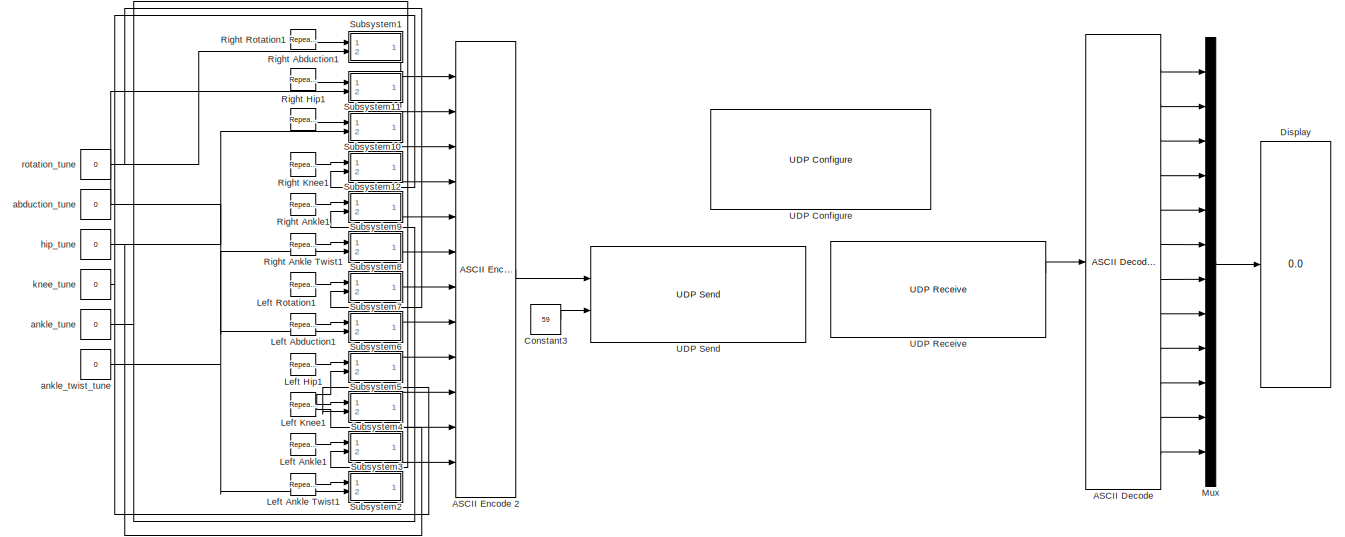
[diagram: root canvas - part 1/2, most of the canvas]
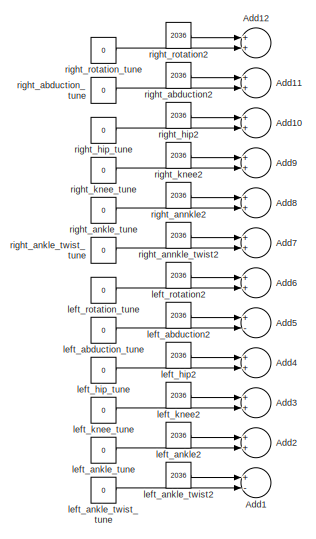
[diagram: root canvas - part 2/2, left side, full height]
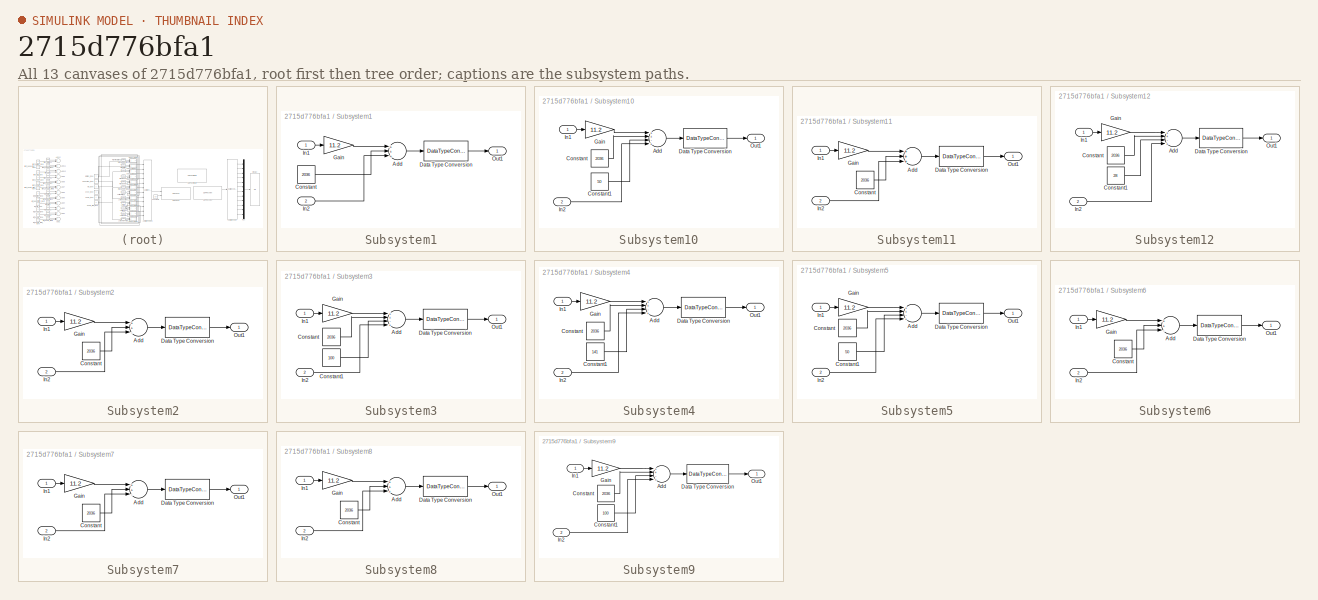
[diagram: thumbnail index - all 13 canvases of the model, root first then tree order]
MODEL slx_2715d776bfa1
KIND model
CONFIG AbsTol = auto
CONFIG EnableMultiTasking = on
CONFIG FixedStep = 0.001
CONFIG MaxStep = auto
CONFIG MinStep = auto
CONFIG RelTol = 1e-3
CONFIG SampleTimeConstraint = Unconstrained
CONFIG Solver = FixedStepAuto
CONFIG SolverName = FixedStepAuto
CONFIG StartTime = 0.0
CONFIG StopTime = inf
BLOCK [Reference] ASCII Decode   REF=xpcseriallib/ASCII Decode 
  Ports = [1, 12]
  SourceBlock = xpcseriallib/ASCII Decode
  SourceProductBaseCode = XP
  SourceProductName = Simulink Real-Time
  SourceType = ASCII Decode
BLOCK [Reference] ASCII Encode 2  REF=xpcseriallib/ASCII Encode 
  Ports = [12, 1]
  SourceBlock = xpcseriallib/ASCII Encode
  SourceProductBaseCode = XP
  SourceProductName = Simulink Real-Time
  SourceType = ASCII Encode
BLOCK [Sum] Add1
  Commented = on
  InputSameDT = off
  Inputs = +-
  OutDataTypeStr = uint32
  Ports = [2, 1]
  SaturateOnIntegerOverflow = off
BLOCK [Sum] Add10
  Commented = on
  InputSameDT = off
  OutDataTypeStr = uint32
  Ports = [2, 1]
  SaturateOnIntegerOverflow = off
BLOCK [Sum] Add11
  Commented = on
  InputSameDT = off
  OutDataTypeStr = uint32
  Ports = [2, 1]
  SaturateOnIntegerOverflow = off
BLOCK [Sum] Add12
  Commented = on
  InputSameDT = off
  OutDataTypeStr = uint32
  Ports = [2, 1]
  SaturateOnIntegerOverflow = off
BLOCK [Sum] Add2
  Commented = on
  InputSameDT = off
  OutDataTypeStr = uint32
  Ports = [2, 1]
  SaturateOnIntegerOverflow = off
BLOCK [Sum] Add3
  Commented = on
  InputSameDT = off
  OutDataTypeStr = uint32
  Ports = [2, 1]
  SaturateOnIntegerOverflow = off
BLOCK [Sum] Add4
  Commented = on
  InputSameDT = off
  OutDataTypeStr = uint32
  Ports = [2, 1]
  SaturateOnIntegerOverflow = off
BLOCK [Sum] Add5
  Commented = on
  InputSameDT = off
  Inputs = +-
  OutDataTypeStr = uint32
  Ports = [2, 1]
  SaturateOnIntegerOverflow = off
BLOCK [Sum] Add6
  Commented = on
  InputSameDT = off
  OutDataTypeStr = uint32
  Ports = [2, 1]
  SaturateOnIntegerOverflow = off
BLOCK [Sum] Add7
  Commented = on
  InputSameDT = off
  OutDataTypeStr = uint32
  Ports = [2, 1]
  SaturateOnIntegerOverflow = off
BLOCK [Sum] Add8
  Commented = on
  InputSameDT = off
  OutDataTypeStr = uint32
  Ports = [2, 1]
  SaturateOnIntegerOverflow = off
BLOCK [Sum] Add9
  Commented = on
  InputSameDT = off
  OutDataTypeStr = uint32
  Ports = [2, 1]
  SaturateOnIntegerOverflow = off
BLOCK [Constant] Constant3
  Value = 59
BLOCK [Display] Display
  Decimation = 1
  Ports = [1]
BLOCK [Reference] Left Abduction1  REF=simulink/Sources/Repeating
Sequence
  Ports = [0, 1]
  SourceBlock = simulink/Sources/Repeating\nSequence
  SourceProductBaseCode = SL
  SourceProductName = Simulink
  SourceType = Repeating table
BLOCK [Reference] Left Ankle Twist1  REF=simulink/Sources/Repeating
Sequence
  Ports = [0, 1]
  SourceBlock = simulink/Sources/Repeating\nSequence
  SourceProductBaseCode = SL
  SourceProductName = Simulink
  SourceType = Repeating table
BLOCK [Reference] Left Ankle1  REF=simulink/Sources/Repeating
Sequence
  Ports = [0, 1]
  SourceBlock = simulink/Sources/Repeating\nSequence
  SourceProductBaseCode = SL
  SourceProductName = Simulink
  SourceType = Repeating table
BLOCK [Reference] Left Hip1  REF=simulink/Sources/Repeating
Sequence
  Ports = [0, 1]
  SourceBlock = simulink/Sources/Repeating\nSequence
  SourceProductBaseCode = SL
  SourceProductName = Simulink
  SourceType = Repeating table
BLOCK [Reference] Left Knee1  REF=simulink/Sources/Repeating
Sequence
  Ports = [0, 1]
  SourceBlock = simulink/Sources/Repeating\nSequence
  SourceProductBaseCode = SL
  SourceProductName = Simulink
  SourceType = Repeating table
BLOCK [Reference] Left Rotation1  REF=simulink/Sources/Repeating
Sequence
  Ports = [0, 1]
  SourceBlock = simulink/Sources/Repeating\nSequence
  SourceProductBaseCode = SL
  SourceProductName = Simulink
  SourceType = Repeating table
BLOCK [Mux] Mux
  DisplayOption = bar
  Inputs = 12
  Ports = [12, 1]
BLOCK [Reference] Right Abduction1  REF=simulink/Sources/Repeating
Sequence
  Ports = [0, 1]
  SourceBlock = simulink/Sources/Repeating\nSequence
  SourceProductBaseCode = SL
  SourceProductName = Simulink
  SourceType = Repeating table
BLOCK [Reference] Right Ankle Twist1  REF=simulink/Sources/Repeating
Sequence
  Ports = [0, 1]
  SourceBlock = simulink/Sources/Repeating\nSequence
  SourceProductBaseCode = SL
  SourceProductName = Simulink
  SourceType = Repeating table
BLOCK [Reference] Right Ankle1  REF=simulink/Sources/Repeating
Sequence
  Ports = [0, 1]
  SourceBlock = simulink/Sources/Repeating\nSequence
  SourceProductBaseCode = SL
  SourceProductName = Simulink
  SourceType = Repeating table
BLOCK [Reference] Right Hip1  REF=simulink/Sources/Repeating
Sequence
  Ports = [0, 1]
  SourceBlock = simulink/Sources/Repeating\nSequence
  SourceProductBaseCode = SL
  SourceProductName = Simulink
  SourceType = Repeating table
BLOCK [Reference] Right Knee1  REF=simulink/Sources/Repeating
Sequence
  Ports = [0, 1]
  SourceBlock = simulink/Sources/Repeating\nSequence
  SourceProductBaseCode = SL
  SourceProductName = Simulink
  SourceType = Repeating table
BLOCK [Reference] Right Rotation1  REF=simulink/Sources/Repeating
Sequence
  Ports = [0, 1]
  SourceBlock = simulink/Sources/Repeating\nSequence
  SourceProductBaseCode = SL
  SourceProductName = Simulink
  SourceType = Repeating table
BLOCK [SubSystem] Subsystem1
  Ports = [2, 1]
  RequestExecContextInheritance = off
BLOCK [Sum] Subsystem1/Add
  InputSameDT = off
  Inputs = +++
  OutDataTypeStr = Inherit: Inherit via internal rule
  Ports = [3, 1]
  SaturateOnIntegerOverflow = off
BLOCK [Constant] Subsystem1/Constant
  Value = 2036
BLOCK [DataTypeConversion] Subsystem1/Data Type Conversion
  OutDataTypeStr = uint32
  RndMeth = Floor
  SaturateOnIntegerOverflow = off
BLOCK [Gain] Subsystem1/Gain
  Gain = 11.2
  OutDataTypeStr = Inherit: Inherit via internal rule
  ParamDataTypeStr = Inherit: Inherit via internal rule
  SaturateOnIntegerOverflow = off
BLOCK [Inport] Subsystem1/In1
  IconDisplay = Port number
BLOCK [Inport] Subsystem1/In2
  IconDisplay = Port number
  Port = 2
BLOCK [Outport] Subsystem1/Out1
  IconDisplay = Port number
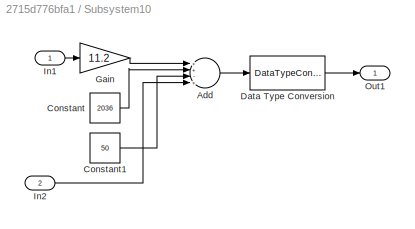
BLOCK [SubSystem] Subsystem10
  Ports = [2, 1]
  RequestExecContextInheritance = off
BLOCK [Sum] Subsystem10/Add
  InputSameDT = off
  Inputs = ++-+
  OutDataTypeStr = Inherit: Inherit via internal rule
  Ports = [4, 1]
  SaturateOnIntegerOverflow = off
BLOCK [Constant] Subsystem10/Constant
  Value = 2036
BLOCK [Constant] Subsystem10/Constant1
  Value = 50
BLOCK [DataTypeConversion] Subsystem10/Data Type Conversion
  OutDataTypeStr = uint32
  RndMeth = Floor
  SaturateOnIntegerOverflow = off
BLOCK [Gain] Subsystem10/Gain
  Gain = 11.2
  OutDataTypeStr = Inherit: Inherit via internal rule
  ParamDataTypeStr = Inherit: Inherit via internal rule
  SaturateOnIntegerOverflow = off
BLOCK [Inport] Subsystem10/In1
  IconDisplay = Port number
BLOCK [Inport] Subsystem10/In2
  IconDisplay = Port number
  Port = 2
BLOCK [Outport] Subsystem10/Out1
  IconDisplay = Port number
BLOCK [SubSystem] Subsystem11
  Ports = [2, 1]
  RequestExecContextInheritance = off
BLOCK [Sum] Subsystem11/Add
  InputSameDT = off
  Inputs = +++
  OutDataTypeStr = Inherit: Inherit via internal rule
  Ports = [3, 1]
  SaturateOnIntegerOverflow = off
BLOCK [Constant] Subsystem11/Constant
  Value = 2036
BLOCK [DataTypeConversion] Subsystem11/Data Type Conversion
  OutDataTypeStr = uint32
  RndMeth = Floor
  SaturateOnIntegerOverflow = off
BLOCK [Gain] Subsystem11/Gain
  Gain = 11.2
  OutDataTypeStr = Inherit: Inherit via internal rule
  ParamDataTypeStr = Inherit: Inherit via internal rule
  SaturateOnIntegerOverflow = off
BLOCK [Inport] Subsystem11/In1
  IconDisplay = Port number
BLOCK [Inport] Subsystem11/In2
  IconDisplay = Port number
  Port = 2
BLOCK [Outport] Subsystem11/Out1
  IconDisplay = Port number
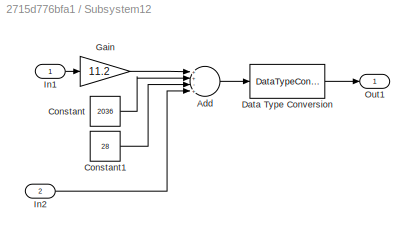
BLOCK [SubSystem] Subsystem12
  Ports = [2, 1]
  RequestExecContextInheritance = off
BLOCK [Sum] Subsystem12/Add
  InputSameDT = off
  Inputs = ++-+
  OutDataTypeStr = Inherit: Inherit via internal rule
  Ports = [4, 1]
  SaturateOnIntegerOverflow = off
BLOCK [Constant] Subsystem12/Constant
  Value = 2036
BLOCK [Constant] Subsystem12/Constant1
  Value = 28
BLOCK [DataTypeConversion] Subsystem12/Data Type Conversion
  OutDataTypeStr = uint32
  RndMeth = Floor
  SaturateOnIntegerOverflow = off
BLOCK [Gain] Subsystem12/Gain
  Gain = 11.2
  OutDataTypeStr = Inherit: Inherit via internal rule
  ParamDataTypeStr = Inherit: Inherit via internal rule
  SaturateOnIntegerOverflow = off
BLOCK [Inport] Subsystem12/In1
  IconDisplay = Port number
BLOCK [Inport] Subsystem12/In2
  IconDisplay = Port number
  Port = 2
BLOCK [Outport] Subsystem12/Out1
  IconDisplay = Port number
BLOCK [SubSystem] Subsystem2
  Ports = [2, 1]
  RequestExecContextInheritance = off
BLOCK [Sum] Subsystem2/Add
  InputSameDT = off
  Inputs = ++-
  OutDataTypeStr = Inherit: Inherit via internal rule
  Ports = [3, 1]
  SaturateOnIntegerOverflow = off
BLOCK [Constant] Subsystem2/Constant
  Value = 2036
BLOCK [DataTypeConversion] Subsystem2/Data Type Conversion
  OutDataTypeStr = uint32
  RndMeth = Floor
  SaturateOnIntegerOverflow = off
BLOCK [Gain] Subsystem2/Gain
  Gain = 11.2
  OutDataTypeStr = Inherit: Inherit via internal rule
  ParamDataTypeStr = Inherit: Inherit via internal rule
  SaturateOnIntegerOverflow = off
BLOCK [Inport] Subsystem2/In1
  IconDisplay = Port number
BLOCK [Inport] Subsystem2/In2
  IconDisplay = Port number
  Port = 2
BLOCK [Outport] Subsystem2/Out1
  IconDisplay = Port number
BLOCK [SubSystem] Subsystem3
  Ports = [2, 1]
  RequestExecContextInheritance = off
BLOCK [Sum] Subsystem3/Add
  InputSameDT = off
  Inputs = ++-+
  OutDataTypeStr = Inherit: Inherit via internal rule
  Ports = [4, 1]
  SaturateOnIntegerOverflow = off
BLOCK [Constant] Subsystem3/Constant
  Value = 2036
BLOCK [Constant] Subsystem3/Constant1
  Value = 100
BLOCK [DataTypeConversion] Subsystem3/Data Type Conversion
  OutDataTypeStr = uint32
  RndMeth = Floor
  SaturateOnIntegerOverflow = off
BLOCK [Gain] Subsystem3/Gain
  Gain = 11.2
  OutDataTypeStr = Inherit: Inherit via internal rule
  ParamDataTypeStr = Inherit: Inherit via internal rule
  SaturateOnIntegerOverflow = off
BLOCK [Inport] Subsystem3/In1
  IconDisplay = Port number
BLOCK [Inport] Subsystem3/In2
  IconDisplay = Port number
  Port = 2
BLOCK [Outport] Subsystem3/Out1
  IconDisplay = Port number
BLOCK [SubSystem] Subsystem4
  Ports = [2, 1]
  RequestExecContextInheritance = off
BLOCK [Sum] Subsystem4/Add
  InputSameDT = off
  Inputs = ++-+
  OutDataTypeStr = Inherit: Inherit via internal rule
  Ports = [4, 1]
  SaturateOnIntegerOverflow = off
BLOCK [Constant] Subsystem4/Constant
  Value = 2036
BLOCK [Constant] Subsystem4/Constant1
  Value = 141
BLOCK [DataTypeConversion] Subsystem4/Data Type Conversion
  OutDataTypeStr = uint32
  RndMeth = Floor
  SaturateOnIntegerOverflow = off
BLOCK [Gain] Subsystem4/Gain
  Gain = 11.2
  OutDataTypeStr = Inherit: Inherit via internal rule
  ParamDataTypeStr = Inherit: Inherit via internal rule
  SaturateOnIntegerOverflow = off
BLOCK [Inport] Subsystem4/In1
  IconDisplay = Port number
BLOCK [Inport] Subsystem4/In2
  IconDisplay = Port number
  Port = 2
BLOCK [Outport] Subsystem4/Out1
  IconDisplay = Port number
BLOCK [SubSystem] Subsystem5
  Ports = [2, 1]
  RequestExecContextInheritance = off
BLOCK [Sum] Subsystem5/Add
  InputSameDT = off
  Inputs = ++-+
  OutDataTypeStr = Inherit: Inherit via internal rule
  Ports = [4, 1]
  SaturateOnIntegerOverflow = off
BLOCK [Constant] Subsystem5/Constant
  Value = 2036
BLOCK [Constant] Subsystem5/Constant1
  Value = 50
BLOCK [DataTypeConversion] Subsystem5/Data Type Conversion
  OutDataTypeStr = uint32
  RndMeth = Floor
  SaturateOnIntegerOverflow = off
BLOCK [Gain] Subsystem5/Gain
  Gain = 11.2
  OutDataTypeStr = Inherit: Inherit via internal rule
  ParamDataTypeStr = Inherit: Inherit via internal rule
  SaturateOnIntegerOverflow = off
BLOCK [Inport] Subsystem5/In1
  IconDisplay = Port number
BLOCK [Inport] Subsystem5/In2
  IconDisplay = Port number
  Port = 2
BLOCK [Outport] Subsystem5/Out1
  IconDisplay = Port number
BLOCK [SubSystem] Subsystem6
  Ports = [2, 1]
  RequestExecContextInheritance = off
BLOCK [Sum] Subsystem6/Add
  InputSameDT = off
  Inputs = ++-
  OutDataTypeStr = Inherit: Inherit via internal rule
  Ports = [3, 1]
  SaturateOnIntegerOverflow = off
BLOCK [Constant] Subsystem6/Constant
  Value = 2036
BLOCK [DataTypeConversion] Subsystem6/Data Type Conversion
  OutDataTypeStr = uint32
  RndMeth = Floor
  SaturateOnIntegerOverflow = off
BLOCK [Gain] Subsystem6/Gain
  Gain = 11.2
  OutDataTypeStr = Inherit: Inherit via internal rule
  ParamDataTypeStr = Inherit: Inherit via internal rule
  SaturateOnIntegerOverflow = off
BLOCK [Inport] Subsystem6/In1
  IconDisplay = Port number
BLOCK [Inport] Subsystem6/In2
  IconDisplay = Port number
  Port = 2
BLOCK [Outport] Subsystem6/Out1
  IconDisplay = Port number
BLOCK [SubSystem] Subsystem7
  Ports = [2, 1]
  RequestExecContextInheritance = off
BLOCK [Sum] Subsystem7/Add
  InputSameDT = off
  Inputs = ++-
  OutDataTypeStr = Inherit: Inherit via internal rule
  Ports = [3, 1]
  SaturateOnIntegerOverflow = off
BLOCK [Constant] Subsystem7/Constant
  Value = 2036
BLOCK [DataTypeConversion] Subsystem7/Data Type Conversion
  OutDataTypeStr = uint32
  RndMeth = Floor
  SaturateOnIntegerOverflow = off
BLOCK [Gain] Subsystem7/Gain
  Gain = 11.2
  OutDataTypeStr = Inherit: Inherit via internal rule
  ParamDataTypeStr = Inherit: Inherit via internal rule
  SaturateOnIntegerOverflow = off
BLOCK [Inport] Subsystem7/In1
  IconDisplay = Port number
BLOCK [Inport] Subsystem7/In2
  IconDisplay = Port number
  Port = 2
BLOCK [Outport] Subsystem7/Out1
  IconDisplay = Port number
BLOCK [SubSystem] Subsystem8
  Ports = [2, 1]
  RequestExecContextInheritance = off
BLOCK [Sum] Subsystem8/Add
  InputSameDT = off
  Inputs = +++
  OutDataTypeStr = Inherit: Inherit via internal rule
  Ports = [3, 1]
  SaturateOnIntegerOverflow = off
BLOCK [Constant] Subsystem8/Constant
  Value = 2036
BLOCK [DataTypeConversion] Subsystem8/Data Type Conversion
  OutDataTypeStr = uint32
  RndMeth = Floor
  SaturateOnIntegerOverflow = off
BLOCK [Gain] Subsystem8/Gain
  Gain = 11.2
  OutDataTypeStr = Inherit: Inherit via internal rule
  ParamDataTypeStr = Inherit: Inherit via internal rule
  SaturateOnIntegerOverflow = off
BLOCK [Inport] Subsystem8/In1
  IconDisplay = Port number
BLOCK [Inport] Subsystem8/In2
  IconDisplay = Port number
  Port = 2
BLOCK [Outport] Subsystem8/Out1
  IconDisplay = Port number
BLOCK [SubSystem] Subsystem9
  Ports = [2, 1]
  RequestExecContextInheritance = off
BLOCK [Sum] Subsystem9/Add
  InputSameDT = off
  Inputs = ++-+
  OutDataTypeStr = Inherit: Inherit via internal rule
  Ports = [4, 1]
  SaturateOnIntegerOverflow = off
BLOCK [Constant] Subsystem9/Constant
  Value = 2036
BLOCK [Constant] Subsystem9/Constant1
  Value = 100
BLOCK [DataTypeConversion] Subsystem9/Data Type Conversion
  OutDataTypeStr = uint32
  RndMeth = Floor
  SaturateOnIntegerOverflow = off
BLOCK [Gain] Subsystem9/Gain
  Gain = 11.2
  OutDataTypeStr = Inherit: Inherit via internal rule
  ParamDataTypeStr = Inherit: Inherit via internal rule
  SaturateOnIntegerOverflow = off
BLOCK [Inport] Subsystem9/In1
  IconDisplay = Port number
BLOCK [Inport] Subsystem9/In2
  IconDisplay = Port number
  Port = 2
BLOCK [Outport] Subsystem9/Out1
  IconDisplay = Port number
BLOCK [Reference] UDP Configure  REF=xpcrtudplib/UDP Configure
  Ports = []
  Priority = -1
  SourceBlock = xpcrtudplib/UDP Configure
  SourceProductBaseCode = XP
  SourceProductName = Simulink Real-Time
  SourceType = slrtudpconfigure
BLOCK [Reference] UDP Receive  REF=xpcrtudplib/UDP Receive
  Ports = [0, 2]
  SourceBlock = xpcrtudplib/UDP Receive
  SourceProductBaseCode = XP
  SourceProductName = Simulink Real-Time
  SourceType = slrtudpreceive
BLOCK [Reference] UDP Send  REF=xpcrtudplib/UDP Send
  Ports = [2]
  SourceBlock = xpcrtudplib/UDP Send
  SourceProductBaseCode = XP
  SourceProductName = Simulink Real-Time
  SourceType = slrtudpsend
BLOCK [Constant] abduction_tune
  Value = 0
BLOCK [Constant] ankle_tune
  Value = 0
BLOCK [Constant] ankle_twist_tune
  Value = 0
BLOCK [Constant] hip_tune
  Value = 0
BLOCK [Constant] knee_tune
  Value = 0
BLOCK [Constant] left_abduction2 
  Commented = on
  OutDataTypeStr = uint32
  Value = 2036
BLOCK [Constant] left_abduction_tune
  Commented = on
  OutDataTypeStr = int32
  Value = 0
BLOCK [Constant] left_ankle2
  Commented = on
  OutDataTypeStr = uint32
  Value = 2036
BLOCK [Constant] left_ankle_tune
  Commented = on
  OutDataTypeStr = int32
  Value = 0
BLOCK [Constant] left_ankle_twist2 
  Commented = on
  OutDataTypeStr = uint32
  Value = 2036
BLOCK [Constant] left_ankle_twist_tune
  Commented = on
  OutDataTypeStr = int32
  Value = 0
BLOCK [Constant] left_hip2 
  Commented = on
  OutDataTypeStr = uint32
  Value = 2036
BLOCK [Constant] left_hip_tune
  Commented = on
  OutDataTypeStr = int32
  Value = 0
BLOCK [Constant] left_knee2
  Commented = on
  OutDataTypeStr = uint32
  Value = 2036
BLOCK [Constant] left_knee_tune
  Commented = on
  OutDataTypeStr = int32
  Value = 0
BLOCK [Constant] left_rotation2 
  Commented = on
  OutDataTypeStr = uint32
  Value = 2036
BLOCK [Constant] left_rotation_tune
  Commented = on
  OutDataTypeStr = int32
  Value = 0
BLOCK [Constant] right_abduction2 
  Commented = on
  OutDataTypeStr = uint32
  Value = 2036
BLOCK [Constant] right_abduction_tune
  Commented = on
  OutDataTypeStr = int32
  Value = 0
BLOCK [Constant] right_ankle_tune
  Commented = on
  OutDataTypeStr = int32
  Value = 0
BLOCK [Constant] right_ankle_twist_tune
  Commented = on
  OutDataTypeStr = int32
  Value = 0
BLOCK [Constant] right_annkle2
  Commented = on
  OutDataTypeStr = uint32
  Value = 2036
BLOCK [Constant] right_annkle_twist2 
  Commented = on
  OutDataTypeStr = uint32
  Value = 2036
BLOCK [Constant] right_hip2 
  Commented = on
  OutDataTypeStr = uint32
  Value = 2036
BLOCK [Constant] right_hip_tune
  Commented = on
  OutDataTypeStr = int32
  Value = 0
BLOCK [Constant] right_knee2
  Commented = on
  OutDataTypeStr = uint32
  Value = 2036
BLOCK [Constant] right_knee_tune
  Commented = on
  OutDataTypeStr = int32
  Value = 0
BLOCK [Constant] right_rotation2
  Commented = on
  OutDataTypeStr = uint32
  Value = 2036
BLOCK [Constant] right_rotation_tune
  Commented = on
  OutDataTypeStr = int32
  Value = 0
BLOCK [Constant] rotation_tune
  Value = 0
LINE ASCII Decode :1 -> Mux:1
LINE ASCII Decode :10 -> Mux:10
LINE ASCII Decode :11 -> Mux:11
LINE ASCII Decode :12 -> Mux:12
LINE ASCII Decode :2 -> Mux:2
LINE ASCII Decode :3 -> Mux:3
LINE ASCII Decode :4 -> Mux:4
LINE ASCII Decode :5 -> Mux:5
LINE ASCII Decode :6 -> Mux:6
LINE ASCII Decode :7 -> Mux:7
LINE ASCII Decode :8 -> Mux:8
LINE ASCII Decode :9 -> Mux:9
LINE ASCII Encode 2:1 -> UDP Send:1
LINE Constant3:1 -> UDP Send:2
LINE Left Abduction1:1 -> Subsystem6:1
LINE Left Ankle Twist1:1 -> Subsystem2:1
LINE Left Ankle1:1 -> Subsystem3:1
LINE Left Hip1:1 -> Subsystem5:1
LINE Left Knee1:1 -> Subsystem4:1
LINE Left Rotation1:1 -> Subsystem7:1
LINE Mux:1 -> Display:1
LINE Right Abduction1:1 -> Subsystem11:1
LINE Right Ankle Twist1:1 -> Subsystem8:1
LINE Right Ankle1:1 -> Subsystem9:1
LINE Right Hip1:1 -> Subsystem10:1
LINE Right Knee1:1 -> Subsystem12:1
LINE Right Rotation1:1 -> Subsystem1:1
LINE Subsystem1/Add:1 -> Subsystem1/Data Type Conversion:1
LINE Subsystem1/Constant:1 -> Subsystem1/Add:2
LINE Subsystem1/Data Type Conversion:1 -> Subsystem1/Out1:1
LINE Subsystem1/Gain:1 -> Subsystem1/Add:1
LINE Subsystem1/In1:1 -> Subsystem1/Gain:1
LINE Subsystem1/In2:1 -> Subsystem1/Add:3
LINE Subsystem10/Add:1 -> Subsystem10/Data Type Conversion:1
LINE Subsystem10/Constant1:1 -> Subsystem10/Add:3
LINE Subsystem10/Constant:1 -> Subsystem10/Add:2
LINE Subsystem10/Data Type Conversion:1 -> Subsystem10/Out1:1
LINE Subsystem10/Gain:1 -> Subsystem10/Add:1
LINE Subsystem10/In1:1 -> Subsystem10/Gain:1
LINE Subsystem10/In2:1 -> Subsystem10/Add:4
LINE Subsystem10:1 -> ASCII Encode 2:3
LINE Subsystem11/Add:1 -> Subsystem11/Data Type Conversion:1
LINE Subsystem11/Constant:1 -> Subsystem11/Add:2
LINE Subsystem11/Data Type Conversion:1 -> Subsystem11/Out1:1
LINE Subsystem11/Gain:1 -> Subsystem11/Add:1
LINE Subsystem11/In1:1 -> Subsystem11/Gain:1
LINE Subsystem11/In2:1 -> Subsystem11/Add:3
LINE Subsystem11:1 -> ASCII Encode 2:2
LINE Subsystem12/Add:1 -> Subsystem12/Data Type Conversion:1
LINE Subsystem12/Constant1:1 -> Subsystem12/Add:3
LINE Subsystem12/Constant:1 -> Subsystem12/Add:2
LINE Subsystem12/Data Type Conversion:1 -> Subsystem12/Out1:1
LINE Subsystem12/Gain:1 -> Subsystem12/Add:1
LINE Subsystem12/In1:1 -> Subsystem12/Gain:1
LINE Subsystem12/In2:1 -> Subsystem12/Add:4
LINE Subsystem12:1 -> ASCII Encode 2:4
LINE Subsystem1:1 -> ASCII Encode 2:1
LINE Subsystem2/Add:1 -> Subsystem2/Data Type Conversion:1
LINE Subsystem2/Constant:1 -> Subsystem2/Add:2
LINE Subsystem2/Data Type Conversion:1 -> Subsystem2/Out1:1
LINE Subsystem2/Gain:1 -> Subsystem2/Add:1
LINE Subsystem2/In1:1 -> Subsystem2/Gain:1
LINE Subsystem2/In2:1 -> Subsystem2/Add:3
LINE Subsystem2:1 -> ASCII Encode 2:12
LINE Subsystem3/Add:1 -> Subsystem3/Data Type Conversion:1
LINE Subsystem3/Constant1:1 -> Subsystem3/Add:3
LINE Subsystem3/Constant:1 -> Subsystem3/Add:2
LINE Subsystem3/Data Type Conversion:1 -> Subsystem3/Out1:1
LINE Subsystem3/Gain:1 -> Subsystem3/Add:1
LINE Subsystem3/In1:1 -> Subsystem3/Gain:1
LINE Subsystem3/In2:1 -> Subsystem3/Add:4
LINE Subsystem3:1 -> ASCII Encode 2:11
LINE Subsystem4/Add:1 -> Subsystem4/Data Type Conversion:1
LINE Subsystem4/Constant1:1 -> Subsystem4/Add:3
LINE Subsystem4/Constant:1 -> Subsystem4/Add:2
LINE Subsystem4/Data Type Conversion:1 -> Subsystem4/Out1:1
LINE Subsystem4/Gain:1 -> Subsystem4/Add:1
LINE Subsystem4/In1:1 -> Subsystem4/Gain:1
LINE Subsystem4/In2:1 -> Subsystem4/Add:4
LINE Subsystem4:1 -> ASCII Encode 2:10
LINE Subsystem5/Add:1 -> Subsystem5/Data Type Conversion:1
LINE Subsystem5/Constant1:1 -> Subsystem5/Add:3
LINE Subsystem5/Constant:1 -> Subsystem5/Add:2
LINE Subsystem5/Data Type Conversion:1 -> Subsystem5/Out1:1
LINE Subsystem5/Gain:1 -> Subsystem5/Add:1
LINE Subsystem5/In1:1 -> Subsystem5/Gain:1
LINE Subsystem5/In2:1 -> Subsystem5/Add:4
LINE Subsystem5:1 -> ASCII Encode 2:9
LINE Subsystem6/Add:1 -> Subsystem6/Data Type Conversion:1
LINE Subsystem6/Constant:1 -> Subsystem6/Add:2
LINE Subsystem6/Data Type Conversion:1 -> Subsystem6/Out1:1
LINE Subsystem6/Gain:1 -> Subsystem6/Add:1
LINE Subsystem6/In1:1 -> Subsystem6/Gain:1
LINE Subsystem6/In2:1 -> Subsystem6/Add:3
LINE Subsystem6:1 -> ASCII Encode 2:8
LINE Subsystem7/Add:1 -> Subsystem7/Data Type Conversion:1
LINE Subsystem7/Constant:1 -> Subsystem7/Add:2
LINE Subsystem7/Data Type Conversion:1 -> Subsystem7/Out1:1
LINE Subsystem7/Gain:1 -> Subsystem7/Add:1
LINE Subsystem7/In1:1 -> Subsystem7/Gain:1
LINE Subsystem7/In2:1 -> Subsystem7/Add:3
LINE Subsystem7:1 -> ASCII Encode 2:7
LINE Subsystem8/Add:1 -> Subsystem8/Data Type Conversion:1
LINE Subsystem8/Constant:1 -> Subsystem8/Add:2
LINE Subsystem8/Data Type Conversion:1 -> Subsystem8/Out1:1
LINE Subsystem8/Gain:1 -> Subsystem8/Add:1
LINE Subsystem8/In1:1 -> Subsystem8/Gain:1
LINE Subsystem8/In2:1 -> Subsystem8/Add:3
LINE Subsystem8:1 -> ASCII Encode 2:6
LINE Subsystem9/Add:1 -> Subsystem9/Data Type Conversion:1
LINE Subsystem9/Constant1:1 -> Subsystem9/Add:3
LINE Subsystem9/Constant:1 -> Subsystem9/Add:2
LINE Subsystem9/Data Type Conversion:1 -> Subsystem9/Out1:1
LINE Subsystem9/Gain:1 -> Subsystem9/Add:1
LINE Subsystem9/In1:1 -> Subsystem9/Gain:1
LINE Subsystem9/In2:1 -> Subsystem9/Add:4
LINE Subsystem9:1 -> ASCII Encode 2:5
LINE UDP Receive:1 -> ASCII Decode :1
NET abduction_tune:1 -> Subsystem11:2, Subsystem6:2
NET ankle_tune:1 -> Subsystem3:2, Subsystem9:2
NET ankle_twist_tune:1 -> Subsystem2:2, Subsystem8:2
NET hip_tune:1 -> Subsystem10:2, Subsystem5:2
NET knee_tune:1 -> Subsystem12:2, Subsystem4:2
LINE left_abduction2 :1 -> Add5:1
LINE left_abduction_tune:1 -> Add5:2
LINE left_ankle2:1 -> Add2:1
LINE left_ankle_tune:1 -> Add2:2
LINE left_ankle_twist2 :1 -> Add1:1
LINE left_ankle_twist_tune:1 -> Add1:2
LINE left_hip2 :1 -> Add4:1
LINE left_hip_tune:1 -> Add4:2
LINE left_knee2:1 -> Add3:1
LINE left_knee_tune:1 -> Add3:2
LINE left_rotation2 :1 -> Add6:1
LINE left_rotation_tune:1 -> Add6:2
LINE right_abduction2 :1 -> Add11:1
LINE right_abduction_tune:1 -> Add11:2
LINE right_ankle_tune:1 -> Add8:2
LINE right_ankle_twist_tune:1 -> Add7:2
LINE right_annkle2:1 -> Add8:1
LINE right_annkle_twist2 :1 -> Add7:1
LINE right_hip2 :1 -> Add10:1
LINE right_hip_tune:1 -> Add10:2
LINE right_knee2:1 -> Add9:1
LINE right_knee_tune:1 -> Add9:2
LINE right_rotation2:1 -> Add12:1
LINE right_rotation_tune:1 -> Add12:2
NET rotation_tune:1 -> Subsystem1:2, Subsystem7:2
note: NET lines group one-source signal fan-out (src -> all destinations, sorted); 1:1 wires keep LINE
